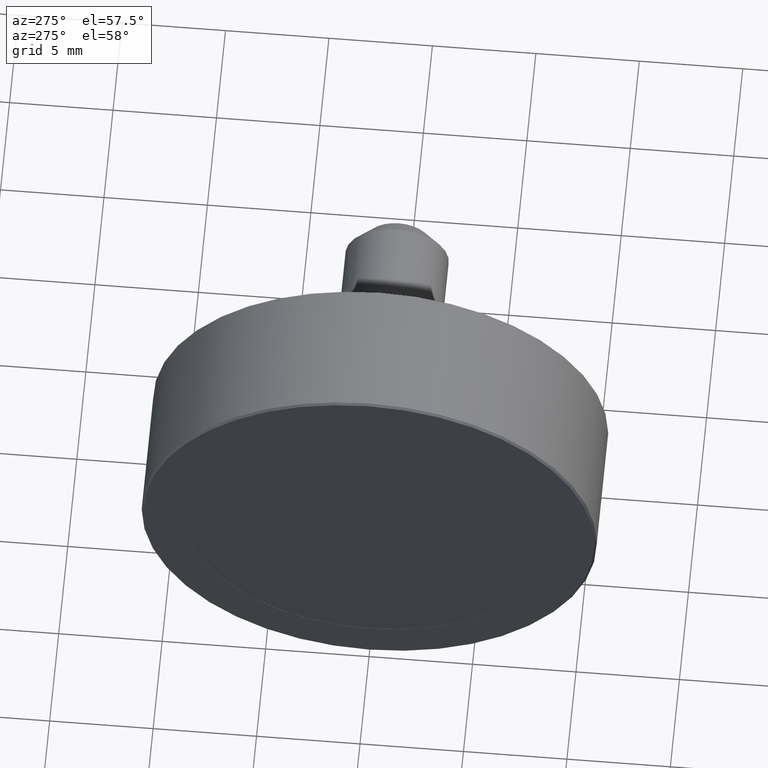
[diagram: clean part render]
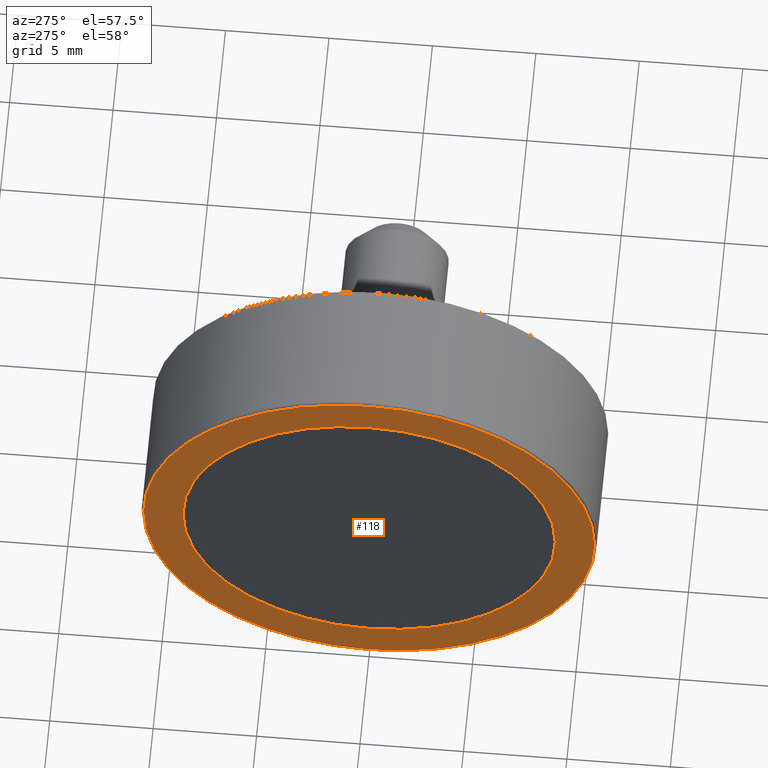
[diagram: same view with one face highlighted and labeled with its STEP entity id]
A machine part, auxiliary view. The second image highlights one B-rep face of the part: STEP entity #118.
In plain terms, the highlighted planar face has unit normal (1, 0, 0).
Its self-contained STEP definition (entity closure, byte-faithful):
#15=PLANE('',#134);
#24=FACE_BOUND('',#47,.T.);
#33=FACE_OUTER_BOUND('',#46,.T.);
#46=EDGE_LOOP('',(#96));
#47=EDGE_LOOP('',(#97));
#63=CIRCLE('',#131,10.9);
#65=CIRCLE('',#135,9.);
#73=VERTEX_POINT('',#198);
#75=VERTEX_POINT('',#204);
#83=EDGE_CURVE('',#73,#73,#63,.T.);
#85=EDGE_CURVE('',#75,#75,#65,.T.);
#96=ORIENTED_EDGE('',*,*,#83,.F.);
#97=ORIENTED_EDGE('',*,*,#85,.T.);
#118=ADVANCED_FACE('',(#33,#24),#15,.F.);
#131=AXIS2_PLACEMENT_3D('',#199,#156,#157);
#134=AXIS2_PLACEMENT_3D('',#203,#162,#163);
#135=AXIS2_PLACEMENT_3D('',#205,#164,#165);
#156=DIRECTION('center_axis',(1.,0.,0.));
#157=DIRECTION('ref_axis',(0.,-1.,0.));
#162=DIRECTION('center_axis',(1.,0.,0.));
#163=DIRECTION('ref_axis',(0.,0.,-1.));
#164=DIRECTION('center_axis',(1.,0.,0.));
#165=DIRECTION('ref_axis',(0.,0.,-1.));
#198=CARTESIAN_POINT('',(0.,10.9,1.33486501107062E-15));
#199=CARTESIAN_POINT('Origin',(0.,0.,0.));
#203=CARTESIAN_POINT('Origin',(0.,-4.48690509505221E-16,1.6821560979169E-16));
#204=CARTESIAN_POINT('',(0.,1.10218211923262E-15,9.));
#205=CARTESIAN_POINT('Origin',(0.,0.,0.));